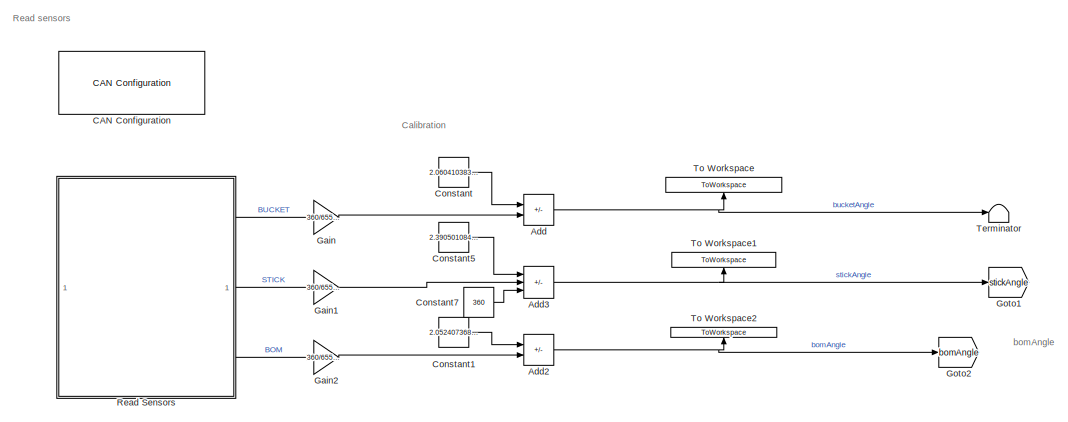
[diagram: root canvas - part 1/5, top center region]
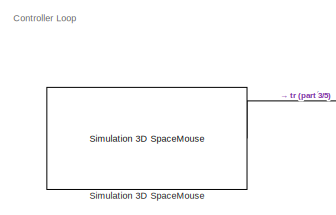
[diagram: root canvas - part 2/5, middle left region]
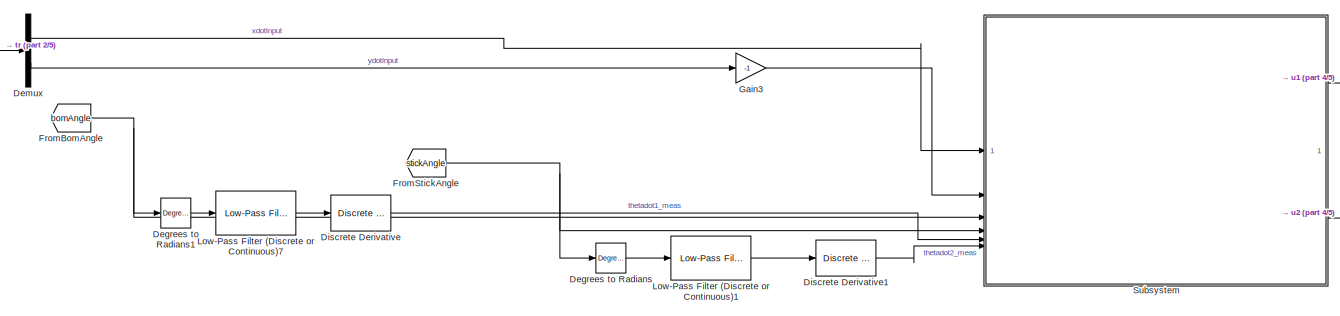
[diagram: root canvas - part 3/5, central region]
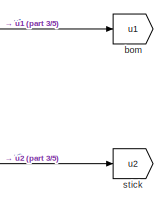
[diagram: root canvas - part 4/5, middle right region]
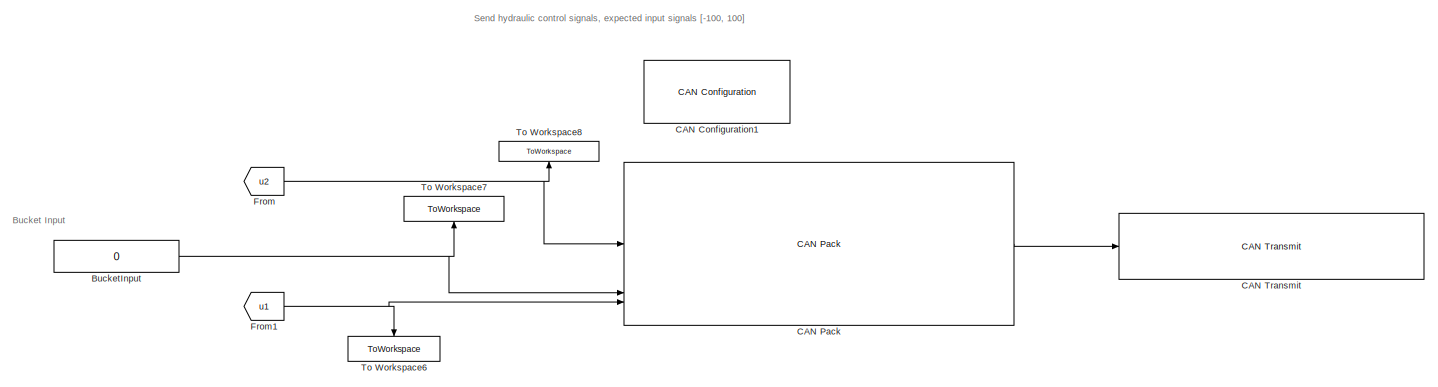
[diagram: root canvas - part 5/5, bottom center region]
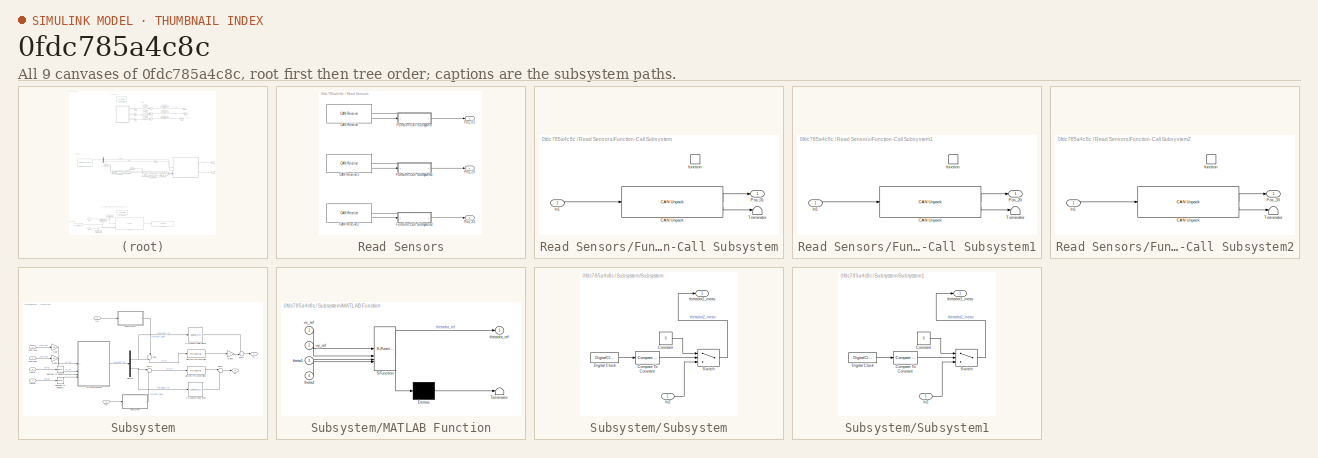
[diagram: thumbnail index - all 9 canvases of the model, root first then tree order]
MODEL slx_0fdc785a4c8c
KIND model
CONFIG AbsTol = auto
CONFIG EnableMultiTasking = off
CONFIG FixedStep = auto
CONFIG MaxStep = auto
CONFIG MinStep = auto
CONFIG RelTol = 1e-3
CONFIG SampleTimeConstraint = Unconstrained
CONFIG SolverName = VariableStepAuto
CONFIG StartTime = 0.0
CONFIG StopTime = Inf
BLOCK [Sum] Add
  IconShape = rectangular
  Inputs = -+
BLOCK [Sum] Add2
  IconShape = rectangular
  Inputs = -+
BLOCK [Sum] Add3
  IconShape = rectangular
  Inputs = -++
BLOCK [Constant] BucketInput
  Value = 0
BLOCK [Reference] CAN Configuration  REF=canlib/CAN Configuration
  SourceBlock = canlib/CAN Configuration
  SourceType = CAN Configuration
BLOCK [Reference] CAN Configuration1  REF=canlib/CAN Configuration
  SourceBlock = canlib/CAN Configuration
  SourceType = CAN Configuration
BLOCK [Reference] CAN Pack  REF=canmsglib/CAN Pack
  LibrarySourceBlock = canlib/CAN Pack
  SourceBlock = canmsglib/CAN Pack
  SourceType = CAN Pack
BLOCK [Reference] CAN Transmit  REF=canlib/CAN Transmit
  SourceBlock = canlib/CAN Transmit
  SourceType = CAN Transmit
BLOCK [Constant] Constant
  Value = 2.060410383456638e+02
BLOCK [Constant] Constant1
  Value = 2.052407368979854e+02
BLOCK [Constant] Constant5
  Value = 2.390501084826040e+02-27.5
BLOCK [Constant] Constant7
  Value = 360
BLOCK [Reference] Degrees to Radians  REF=simulink_extras/Transformations/Degrees to
Radians
  SourceBlock = simulink_extras/Transformations/Degrees to\nRadians
  SourceType = DegreesToRadians
BLOCK [Reference] Degrees to Radians1  REF=simulink_extras/Transformations/Degrees to
Radians
  SourceBlock = simulink_extras/Transformations/Degrees to\nRadians
  SourceType = DegreesToRadians
BLOCK [Demux] Demux
  Outputs = 2
BLOCK [Reference] Discrete Derivative  REF=simulink/Discrete/Discrete Derivative
  SourceBlock = simulink/Discrete/Discrete Derivative
  SourceType = Discrete Derivative
BLOCK [Reference] Discrete Derivative1  REF=simulink/Discrete/Discrete Derivative
  SourceBlock = simulink/Discrete/Discrete Derivative
  SourceType = Discrete Derivative
BLOCK [From] From
  GotoTag = u2
BLOCK [From] From1
  GotoTag = u1
BLOCK [From] FromBomAngle
  GotoTag = bomAngle
BLOCK [From] FromStickAngle
  GotoTag = stickAngle
BLOCK [Gain] Gain
  Gain = 360/65535
BLOCK [Gain] Gain1
  Gain = 360/65535
BLOCK [Gain] Gain2
  Gain = 360/65535
BLOCK [Gain] Gain3
  Gain = -1
BLOCK [Goto] Goto1
  GotoTag = stickAngle
BLOCK [Goto] Goto2
  GotoTag = bomAngle
BLOCK [Reference] Low-Pass Filter (Discrete or Continuous)1  REF=eeGeneralControl/Low-Pass Filter
(Discrete or Continuous)
  LibrarySourceBlock = ee_sl_lib/General Control/Low-Pass Filter\n(Discrete or Continuous)
  SourceBlock = eeGeneralControl/Low-Pass Filter\n(Discrete or Continuous)
  SourceType = Low-Pass Filter (Discrete or Continuous)
BLOCK [Reference] Low-Pass Filter (Discrete or Continuous)7  REF=eeGeneralControl/Low-Pass Filter
(Discrete or Continuous)
  LibrarySourceBlock = ee_sl_lib/General Control/Low-Pass Filter\n(Discrete or Continuous)
  SourceBlock = eeGeneralControl/Low-Pass Filter\n(Discrete or Continuous)
  SourceType = Low-Pass Filter (Discrete or Continuous)
BLOCK [SubSystem] Read Sensors
BLOCK [Reference] Read Sensors/CAN Receive  REF=canlib/CAN Receive
  SourceBlock = canlib/CAN Receive
  SourceType = CAN Receive
BLOCK [Reference] Read Sensors/CAN Receive1  REF=canlib/CAN Receive
  SourceBlock = canlib/CAN Receive
  SourceType = CAN Receive
BLOCK [Reference] Read Sensors/CAN Receive2  REF=canlib/CAN Receive
  SourceBlock = canlib/CAN Receive
  SourceType = CAN Receive
BLOCK [SubSystem] Read Sensors/Function-Call Subsystem
  TreatAsAtomicUnit = on
BLOCK [Reference] Read Sensors/Function-Call Subsystem/CAN Unpack  REF=canmsglib/CAN Unpack
  LibrarySourceBlock = canlib/CAN Unpack
  SourceBlock = canmsglib/CAN Unpack
  SourceType = CAN Unpack
BLOCK [Inport] Read Sensors/Function-Call Subsystem/In1
BLOCK [Outport] Read Sensors/Function-Call Subsystem/Pos_01
BLOCK [Terminator] Read Sensors/Function-Call Subsystem/Terminator
BLOCK [TriggerPort] Read Sensors/Function-Call Subsystem/function
  StatesWhenEnabling = held
  TriggerType = function-call
  VariantControl = (inherit)
BLOCK [SubSystem] Read Sensors/Function-Call Subsystem1
  TreatAsAtomicUnit = on
BLOCK [Reference] Read Sensors/Function-Call Subsystem1/CAN Unpack  REF=canmsglib/CAN Unpack
  LibrarySourceBlock = canlib/CAN Unpack
  SourceBlock = canmsglib/CAN Unpack
  SourceType = CAN Unpack
BLOCK [Inport] Read Sensors/Function-Call Subsystem1/In1
BLOCK [Outport] Read Sensors/Function-Call Subsystem1/Pos_20
BLOCK [Terminator] Read Sensors/Function-Call Subsystem1/Terminator
BLOCK [TriggerPort] Read Sensors/Function-Call Subsystem1/function
  StatesWhenEnabling = held
  TriggerType = function-call
  VariantControl = (inherit)
BLOCK [SubSystem] Read Sensors/Function-Call Subsystem2
  TreatAsAtomicUnit = on
BLOCK [Reference] Read Sensors/Function-Call Subsystem2/CAN Unpack  REF=canmsglib/CAN Unpack
  LibrarySourceBlock = canlib/CAN Unpack
  SourceBlock = canmsglib/CAN Unpack
  SourceType = CAN Unpack
BLOCK [Inport] Read Sensors/Function-Call Subsystem2/In1
BLOCK [Outport] Read Sensors/Function-Call Subsystem2/Pos_33
BLOCK [Terminator] Read Sensors/Function-Call Subsystem2/Terminator
BLOCK [TriggerPort] Read Sensors/Function-Call Subsystem2/function
  StatesWhenEnabling = held
  TriggerType = function-call
  VariantControl = (inherit)
BLOCK [Outport] Read Sensors/Pos_01
BLOCK [Outport] Read Sensors/Pos_20
  Port = 2
BLOCK [Outport] Read Sensors/Pos_33
  Port = 3
BLOCK [Reference] Simulation 3D SpaceMouse  REF=sl3dlib/Simulation 3D/Hardware Interface/Simulation 3D SpaceMouse
  SourceBlock = sl3dlib/Simulation 3D/Hardware Interface/Simulation 3D SpaceMouse
  SourceType = Simulation 3D SpaceMouse
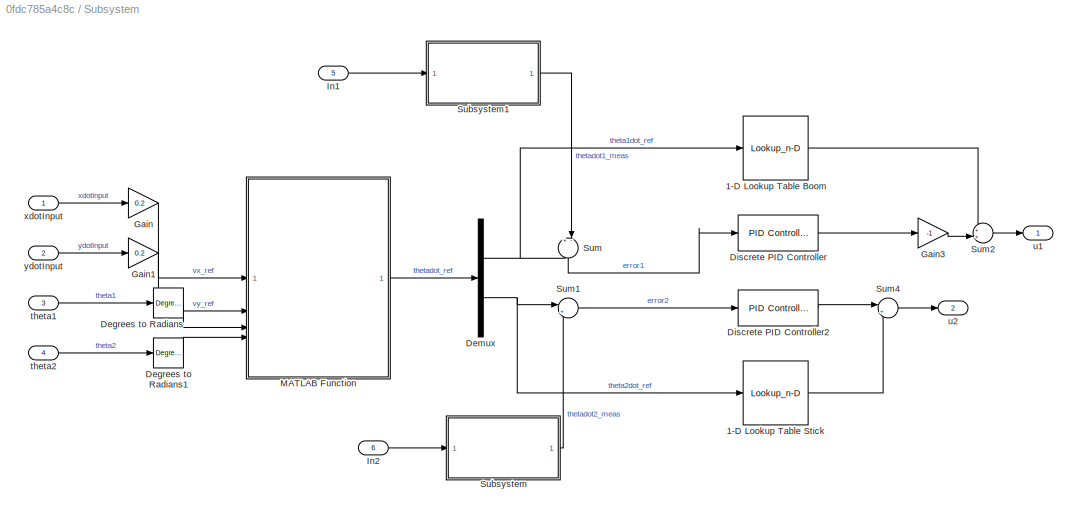
BLOCK [SubSystem] Subsystem
BLOCK [Lookup_n-D] Subsystem/1-D Lookup Table Boom
  BreakpointsForDimension1 = Boom_Vel_LUT
  InputPortMap = u0
  InternalRulePriority = Speed
  NumberOfTableDimensions = 1
  RndMeth = Simplest
  Table = Boom_Cmd_LUT
BLOCK [Lookup_n-D] Subsystem/1-D Lookup Table Stick
  BreakpointsForDimension1 = Stick_Vel_LUT
  InputPortMap = u0
  InternalRulePriority = Speed
  NumberOfTableDimensions = 1
  RndMeth = Simplest
  Table = Stick_Cmd_LUT
BLOCK [Reference] Subsystem/Degrees to Radians  REF=simulink_extras/Transformations/Degrees to
Radians
  SourceBlock = simulink_extras/Transformations/Degrees to\nRadians
  SourceType = DegreesToRadians
BLOCK [Reference] Subsystem/Degrees to Radians1  REF=simulink_extras/Transformations/Degrees to
Radians
  SourceBlock = simulink_extras/Transformations/Degrees to\nRadians
  SourceType = DegreesToRadians
BLOCK [Demux] Subsystem/Demux
  Outputs = 2
BLOCK [Reference] Subsystem/Discrete PID Controller  REF=slpidlib/PID Controller
  LibrarySourceBlock = simulink/Discrete/Discrete PID Controller
  SourceBlock = slpidlib/PID Controller
  SourceType = PID 1dof
BLOCK [Reference] Subsystem/Discrete PID Controller2  REF=slpidlib/PID Controller
  LibrarySourceBlock = simulink/Discrete/Discrete PID Controller
  SourceBlock = slpidlib/PID Controller
  SourceType = PID 1dof
BLOCK [Gain] Subsystem/Gain
  Gain = 0.2
BLOCK [Gain] Subsystem/Gain1
  Gain = 0.2
BLOCK [Gain] Subsystem/Gain3
  Gain = -1
BLOCK [Inport] Subsystem/In1
  Port = 5
BLOCK [Inport] Subsystem/In2
  Port = 6
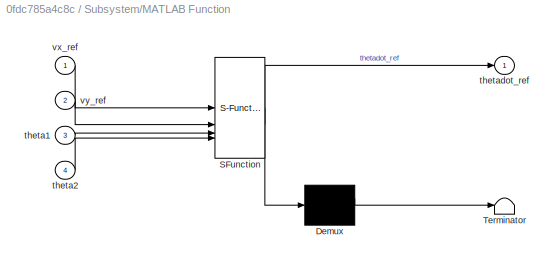
BLOCK [SubSystem] Subsystem/MATLAB Function
  ErrorFcn = Stateflow.Translate.translate
  PermitHierarchicalResolution = ExplicitOnly
  SFBlockType = MATLAB Function
  TreatAsAtomicUnit = on
BLOCK [Demux] Subsystem/MATLAB Function/ Demux 
  Outputs = 1
BLOCK [S-Function] Subsystem/MATLAB Function/ SFunction 
  EnableBusSupport = off
  FunctionName = sf_sfun
  PortCounts = [4 2]
  SFcnIsStateOwnerBlock = off
  SFunctionDeploymentMode = off
  Tag = Stateflow S-Function 4
BLOCK [Terminator] Subsystem/MATLAB Function/ Terminator 
BLOCK [Inport] Subsystem/MATLAB Function/theta1
  Port = 3
BLOCK [Inport] Subsystem/MATLAB Function/theta2
  Port = 4
BLOCK [Outport] Subsystem/MATLAB Function/thetadot_ref
BLOCK [Inport] Subsystem/MATLAB Function/vx_ref
BLOCK [Inport] Subsystem/MATLAB Function/vy_ref
  Port = 2
BLOCK [SubSystem] Subsystem/Subsystem
BLOCK [Reference] Subsystem/Subsystem/Compare To Constant  REF=simulink/Logic and Bit
Operations/Compare
To Constant
  SourceBlock = simulink/Logic and Bit\nOperations/Compare\nTo Constant
  SourceType = Compare To Constant
BLOCK [Constant] Subsystem/Subsystem/Constant
  Value = 0
BLOCK [DigitalClock] Subsystem/Subsystem/Digital Clock
  SampleTime = 0.01
BLOCK [Inport] Subsystem/Subsystem/In2
BLOCK [Switch] Subsystem/Subsystem/Switch
  Criteria = u2 > Threshold
  InputSameDT = off
  SaturateOnIntegerOverflow = off
BLOCK [Outport] Subsystem/Subsystem/thetadot2_meas
BLOCK [SubSystem] Subsystem/Subsystem1
BLOCK [Reference] Subsystem/Subsystem1/Compare To Constant  REF=simulink/Logic and Bit
Operations/Compare
To Constant
  SourceBlock = simulink/Logic and Bit\nOperations/Compare\nTo Constant
  SourceType = Compare To Constant
BLOCK [Constant] Subsystem/Subsystem1/Constant
  Value = 0
BLOCK [DigitalClock] Subsystem/Subsystem1/Digital Clock
  SampleTime = 0.01
BLOCK [Inport] Subsystem/Subsystem1/In2
BLOCK [Switch] Subsystem/Subsystem1/Switch
  Criteria = u2 > Threshold
  InputSameDT = off
  SaturateOnIntegerOverflow = off
BLOCK [Outport] Subsystem/Subsystem1/thetadot1_meas
BLOCK [Sum] Subsystem/Sum
  Inputs = +-|
  NameLocation = left
BLOCK [Sum] Subsystem/Sum1
  Inputs = |+-
BLOCK [Sum] Subsystem/Sum2
  Inputs = ++|
BLOCK [Sum] Subsystem/Sum4
  Inputs = |++
BLOCK [Inport] Subsystem/theta1
  Port = 3
BLOCK [Inport] Subsystem/theta2
  Port = 4
BLOCK [Outport] Subsystem/u1
BLOCK [Outport] Subsystem/u2
  Port = 2
BLOCK [Inport] Subsystem/xdotInput
BLOCK [Inport] Subsystem/ydotInput
  Port = 2
BLOCK [Terminator] Terminator
BLOCK [ToWorkspace] To Workspace
  FixptAsFi = on
  MaxDataPoints = inf
  NameLocation = right
  SampleTime = -1
  SaveFormat = Timeseries
  VariableName = bucketAngle
BLOCK [ToWorkspace] To Workspace1
  FixptAsFi = on
  MaxDataPoints = inf
  NameLocation = right
  SampleTime = -1
  SaveFormat = Timeseries
  VariableName = stickAngle
BLOCK [ToWorkspace] To Workspace2
  FixptAsFi = on
  MaxDataPoints = inf
  NameLocation = right
  SampleTime = -1
  SaveFormat = Timeseries
  VariableName = bomAngle
BLOCK [ToWorkspace] To Workspace6
  FixptAsFi = on
  MaxDataPoints = inf
  NameLocation = left
  SampleTime = -1
  SaveFormat = Timeseries
  VariableName = bomInput
BLOCK [ToWorkspace] To Workspace7
  FixptAsFi = on
  MaxDataPoints = inf
  NameLocation = right
  SampleTime = -1
  SaveFormat = Timeseries
  VariableName = bucketInput
BLOCK [ToWorkspace] To Workspace8
  FixptAsFi = on
  MaxDataPoints = inf
  NameLocation = right
  SampleTime = -1
  SaveFormat = Timeseries
  VariableName = stickInput
BLOCK [Goto] bom
  GotoTag = u1
  NameLocation = top
BLOCK [Goto] stick
  GotoTag = u2
ANNOTATION (root): Bucket Input
ANNOTATION (root): Calibration
ANNOTATION (root): Controller Loop
ANNOTATION (root): Read sensors
ANNOTATION (root): Send hydraulic control signals, expected input signals [-100, 100]
ANNOTATION (root): bomAngle
NET Add2:1 -> Goto2:1, To Workspace2:1
NET Add3:1 -> Goto1:1, To Workspace1:1
NET Add:1 -> Terminator:1, To Workspace:1
NET BucketInput:1 -> CAN Pack:4, To Workspace7:1
LINE CAN Pack:1 -> CAN Transmit:1
LINE Constant1:1 -> Add2:1
LINE Constant5:1 -> Add3:1
LINE Constant7:1 -> Add3:3
LINE Constant:1 -> Add:1
LINE Degrees to Radians1:1 -> Low-Pass Filter (Discrete or Continuous)7:1
LINE Degrees to Radians:1 -> Low-Pass Filter (Discrete or Continuous)1:1
LINE Demux:1 -> Subsystem:1
LINE Demux:2 -> Gain3:1
LINE Discrete Derivative1:1 -> Subsystem:6
LINE Discrete Derivative:1 -> Subsystem:5
NET From1:1 -> CAN Pack:6, To Workspace6:1
NET From:1 -> CAN Pack:1, To Workspace8:1
NET FromBomAngle:1 -> Degrees to Radians1:1, Subsystem:3
NET FromStickAngle:1 -> Degrees to Radians:1, Subsystem:4
LINE Gain1:1 -> Add3:2
LINE Gain2:1 -> Add2:2
LINE Gain3:1 -> Subsystem:2
LINE Gain:1 -> Add:2
LINE Low-Pass Filter (Discrete or Continuous)1:1 -> Discrete Derivative1:1
LINE Low-Pass Filter (Discrete or Continuous)7:1 -> Discrete Derivative:1
LINE Read Sensors/CAN Receive1:1 -> Read Sensors/Function-Call Subsystem1:trigger
LINE Read Sensors/CAN Receive1:2 -> Read Sensors/Function-Call Subsystem1:1
LINE Read Sensors/CAN Receive2:1 -> Read Sensors/Function-Call Subsystem2:trigger
LINE Read Sensors/CAN Receive2:2 -> Read Sensors/Function-Call Subsystem2:1
LINE Read Sensors/CAN Receive:1 -> Read Sensors/Function-Call Subsystem:trigger
LINE Read Sensors/CAN Receive:2 -> Read Sensors/Function-Call Subsystem:1
LINE Read Sensors/Function-Call Subsystem/CAN Unpack:1 -> Read Sensors/Function-Call Subsystem/Pos_01:1
LINE Read Sensors/Function-Call Subsystem/CAN Unpack:2 -> Read Sensors/Function-Call Subsystem/Terminator:1
LINE Read Sensors/Function-Call Subsystem/In1:1 -> Read Sensors/Function-Call Subsystem/CAN Unpack:1
LINE Read Sensors/Function-Call Subsystem1/CAN Unpack:1 -> Read Sensors/Function-Call Subsystem1/Pos_20:1
LINE Read Sensors/Function-Call Subsystem1/CAN Unpack:2 -> Read Sensors/Function-Call Subsystem1/Terminator:1
LINE Read Sensors/Function-Call Subsystem1/In1:1 -> Read Sensors/Function-Call Subsystem1/CAN Unpack:1
LINE Read Sensors/Function-Call Subsystem1:1 -> Read Sensors/Pos_20:1
LINE Read Sensors/Function-Call Subsystem2/CAN Unpack:1 -> Read Sensors/Function-Call Subsystem2/Pos_33:1
LINE Read Sensors/Function-Call Subsystem2/CAN Unpack:2 -> Read Sensors/Function-Call Subsystem2/Terminator:1
LINE Read Sensors/Function-Call Subsystem2/In1:1 -> Read Sensors/Function-Call Subsystem2/CAN Unpack:1
LINE Read Sensors/Function-Call Subsystem2:1 -> Read Sensors/Pos_33:1
LINE Read Sensors/Function-Call Subsystem:1 -> Read Sensors/Pos_01:1
LINE Read Sensors:1 -> Gain:1
LINE Read Sensors:2 -> Gain1:1
LINE Read Sensors:3 -> Gain2:1
LINE Simulation 3D SpaceMouse:1 -> Demux:1
LINE Subsystem/1-D Lookup Table Boom:1 -> Subsystem/Sum2:1
LINE Subsystem/1-D Lookup Table Stick:1 -> Subsystem/Sum4:2
LINE Subsystem/Degrees to Radians1:1 -> Subsystem/MATLAB Function:4
LINE Subsystem/Degrees to Radians:1 -> Subsystem/MATLAB Function:3
NET Subsystem/Demux:1 -> Subsystem/1-D Lookup Table Boom:1, Subsystem/Sum:1
NET Subsystem/Demux:2 -> Subsystem/1-D Lookup Table Stick:1, Subsystem/Sum1:1
LINE Subsystem/Discrete PID Controller2:1 -> Subsystem/Sum4:1
LINE Subsystem/Discrete PID Controller:1 -> Subsystem/Gain3:1
LINE Subsystem/Gain1:1 -> Subsystem/MATLAB Function:2
LINE Subsystem/Gain3:1 -> Subsystem/Sum2:2
LINE Subsystem/Gain:1 -> Subsystem/MATLAB Function:1
LINE Subsystem/In1:1 -> Subsystem/Subsystem1:1
LINE Subsystem/In2:1 -> Subsystem/Subsystem:1
LINE Subsystem/MATLAB Function:1 -> Subsystem/Demux:1
LINE Subsystem/Subsystem/Compare To Constant:1 -> Subsystem/Subsystem/Switch:2
LINE Subsystem/Subsystem/Constant:1 -> Subsystem/Subsystem/Switch:1
LINE Subsystem/Subsystem/Digital Clock:1 -> Subsystem/Subsystem/Compare To Constant:1
LINE Subsystem/Subsystem/In2:1 -> Subsystem/Subsystem/Switch:3
LINE Subsystem/Subsystem/Switch:1 -> Subsystem/Subsystem/thetadot2_meas:1
LINE Subsystem/Subsystem1/Compare To Constant:1 -> Subsystem/Subsystem1/Switch:2
LINE Subsystem/Subsystem1/Constant:1 -> Subsystem/Subsystem1/Switch:1
LINE Subsystem/Subsystem1/Digital Clock:1 -> Subsystem/Subsystem1/Compare To Constant:1
LINE Subsystem/Subsystem1/In2:1 -> Subsystem/Subsystem1/Switch:3
LINE Subsystem/Subsystem1/Switch:1 -> Subsystem/Subsystem1/thetadot1_meas:1
LINE Subsystem/Subsystem1:1 -> Subsystem/Sum:2
LINE Subsystem/Subsystem:1 -> Subsystem/Sum1:2
LINE Subsystem/Sum1:1 -> Subsystem/Discrete PID Controller2:1
LINE Subsystem/Sum2:1 -> Subsystem/u1:1
LINE Subsystem/Sum4:1 -> Subsystem/u2:1
LINE Subsystem/Sum:1 -> Subsystem/Discrete PID Controller:1
LINE Subsystem/theta1:1 -> Subsystem/Degrees to Radians:1
LINE Subsystem/theta2:1 -> Subsystem/Degrees to Radians1:1
LINE Subsystem/xdotInput:1 -> Subsystem/Gain:1
LINE Subsystem/ydotInput:1 -> Subsystem/Gain1:1
LINE Subsystem:1 -> bom:1
LINE Subsystem:2 -> stick:1
note: NET lines group one-source signal fan-out (src -> all destinations, sorted); 1:1 wires keep LINE
CHART Subsystem/MATLAB Function states=1 transitions=1
  STATE_LABEL 'eML_blk_kernel()'
  STATE_LABEL 'SCRIPT:\nfunction thetadot_ref = fcn(vx_ref, vy_ref, theta1, theta2)\n% Safe version for Simulink — works even when inputs become vectors\n\nvx_ref = vx_ref(1);\n\n\n\nif abs(vx_ref)>abs(vy_ref)\n    vy_ref = 0;\nelse\n    vx_ref = 0;\nend\n\n% Link lengths [m]\nL1 = 1903.392e-3;\nL2 = 1351.485e-3;\n\nmax_joint_vel1 = 0.1;  \nmax_joint_vel2 = 0.1;\n\n% --- Jacobian ---\nJ11 = -L1 * sin(theta1) - L2 * sin(theta1 + theta...<+581ch>'
CHART  states=0 transitions=0
